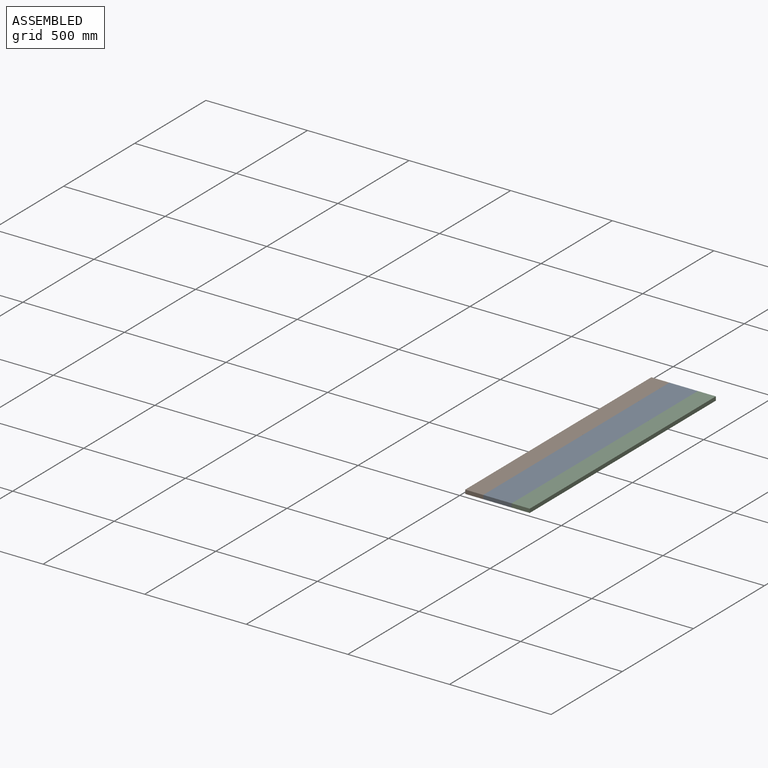
[diagram: assembled view]
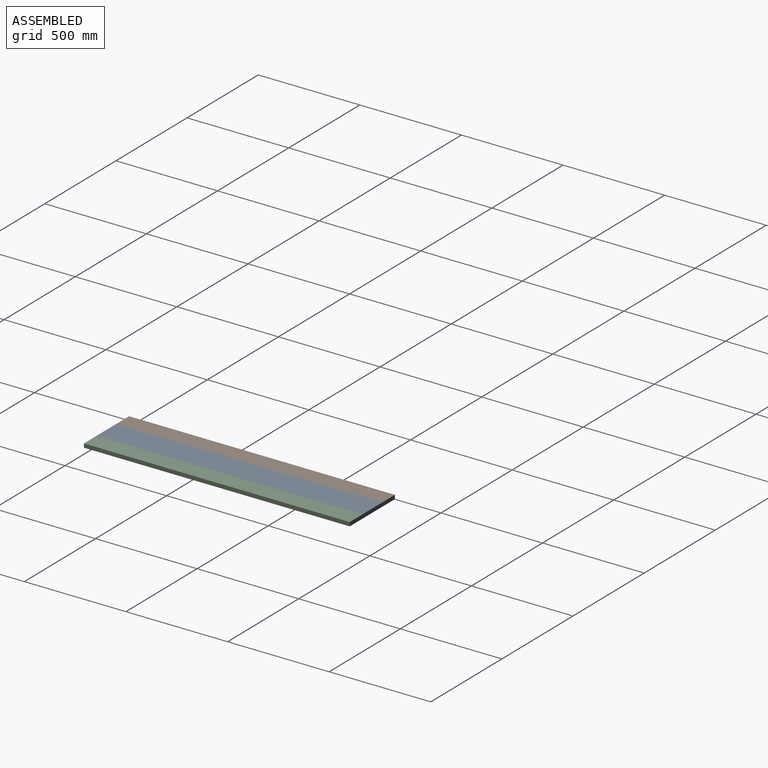
[diagram: assembled view, second angle]
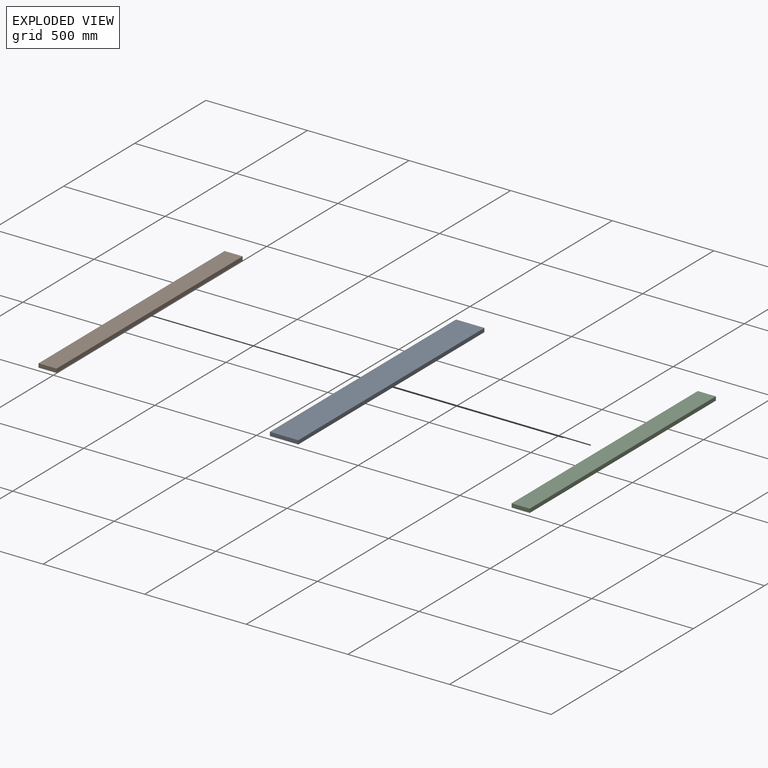
[diagram: exploded view]
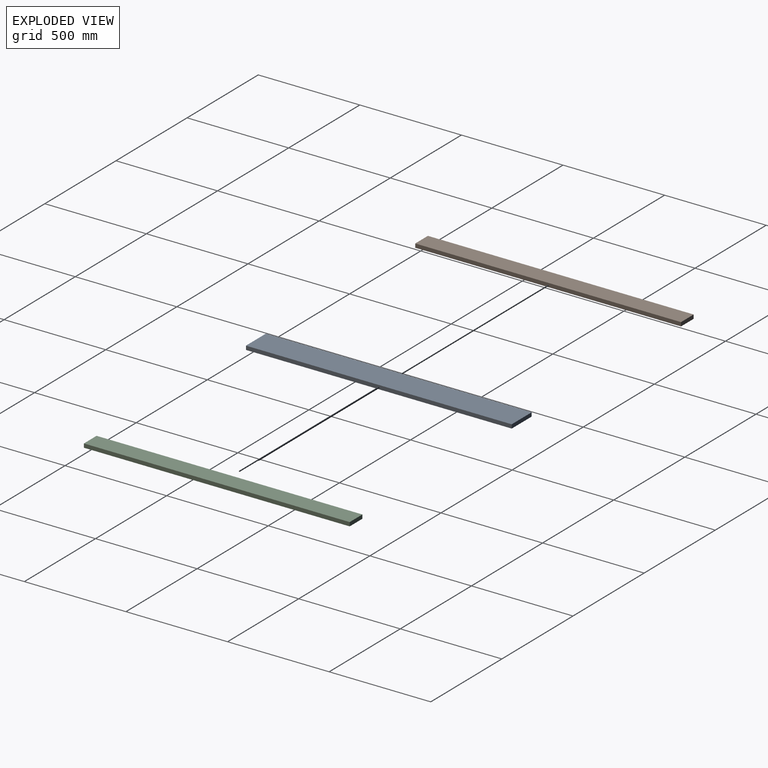
[diagram: exploded view, second angle]
ASSEMBLY  parts=3 mates=2
PART A: 6 faces, bbox 139.7x19.1x1308.1 mm
  f0: plane 1308.1x19.05mm, normal (1,0,0), area 24919.3mm2, adj f1,f3,f4,f5
  f1: plane 139.7x19.05mm, normal (0,0,1), area 2661.3mm2, adj f0,f2,f4,f5
  f2: plane 1308.1x19.05mm, normal (-1,0,0), area 24919.3mm2, adj f1,f3,f4,f5
  f3: plane 139.7x19.05mm, normal (0,0,-1), area 2661.3mm2, adj f0,f2,f4,f5
  f4: plane 1308.1x139.7mm, normal (0,-1,0), area 182741.6mm2, adj f0,f1,f2,f3
  f5: plane 1308.1x139.7mm, normal (0,1,0), area 182741.6mm2, adj f0,f1,f2,f3
PART B: 10 faces, bbox 88.9x1308.1x19.1 mm
  f0: plane 1308.1x19.05mm, normal (-1,0,0), area 12701.6mm2, adj f1,f2,f4,f5,f6,f7,f9
  f1: plane 1308.1x88.9mm, normal (0,0,1), area 108144.9mm2, adj f0,f2,f3,f4,f6,f7,f8
  f2: plane 88.9x19.05mm, normal (0,-1,0), area 1693.5mm2, adj f0,f1,f3,f5
  f3: plane 1308.1x19.05mm, normal (1,0,0), area 24919.3mm2, adj f1,f2,f4,f5
  f4: plane 88.9x19.05mm, normal (0,1,0), area 1693.5mm2, adj f0,f1,f3,f5
  f5: plane 1308.1x88.9mm, normal (0,0,-1), area 116290.1mm2, adj f0,f2,f3,f4
  f6: plane 9.53x6.35mm, normal (0,-1,0), area 60.5mm2, adj f0,f1,f8,f9
  f7: plane 9.53x6.35mm, normal (0,1,0), area 60.5mm2, adj f0,f1,f8,f9
  f8: plane 1282.7x9.53mm, normal (-1,0,0), area 12217.7mm2, adj f1,f6,f7,f9
  f9: plane 1282.7x6.35mm, normal (0,0,1), area 8145.1mm2, adj f0,f6,f7,f8
PART C: 6 faces, bbox 88.9x1308.1x19.1 mm
  f0: plane 88.9x19.05mm, normal (0,-1,0), area 1693.5mm2, adj f1,f3,f4,f5
  f1: plane 1308.1x19.05mm, normal (1,0,0), area 24919.3mm2, adj f0,f2,f4,f5
  f2: plane 88.9x19.05mm, normal (0,1,0), area 1693.5mm2, adj f1,f3,f4,f5
  f3: plane 1308.1x19.05mm, normal (-1,0,0), area 24919.3mm2, adj f0,f2,f4,f5
  f4: plane 1308.1x88.9mm, normal (0,0,1), area 116290.1mm2, adj f0,f1,f2,f3
  f5: plane 1308.1x88.9mm, normal (0,0,-1), area 116290.1mm2, adj f0,f1,f2,f3
PLACE A rot(axis=(-1,0,0),90deg) t=(181.91,143.48,-51.14)mm
PLACE B rot(axis=(1,0,0),180deg) t=(78.98,143.48,-51.14)mm
PLACE C t=(307.58,143.48,-51.14)mm
MATE fastened A.f0 <-> C.f3  axis (1,0,0) through (263.13,797.53,-41.62)mm
MATE fastened B.f3 <-> A.f2  axis (1,0,0) through (123.43,-510.57,-41.62)mm
